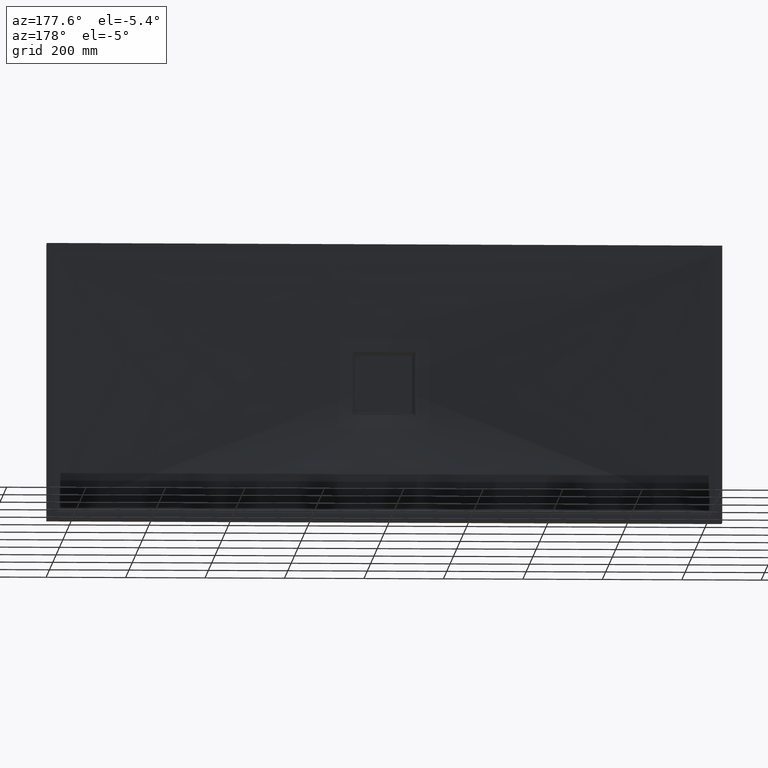
[diagram: clean part render]
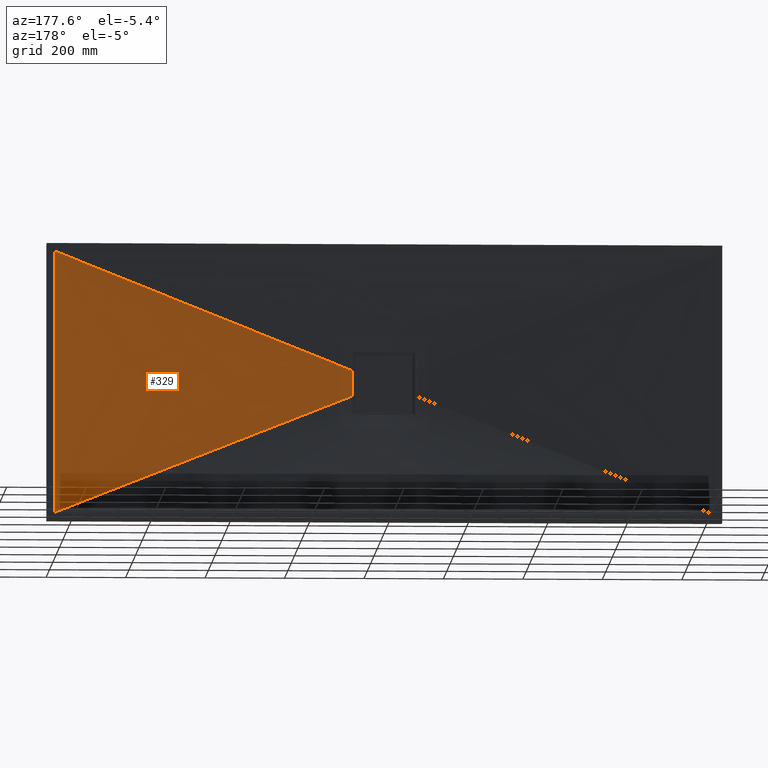
[diagram: same view with one face highlighted and labeled with its STEP entity id]
A machine part, auxiliary view. The second image highlights one B-rep face of the part: STEP entity #329.
In plain terms, the highlighted face is a freeform B-spline surface patch.
Its self-contained STEP definition (entity closure, byte-faithful):
#6 = CARTESIAN_POINT ( 'NONE',  ( 79.99999999997210400, 19.99999985491206200, 10.60246959217084300 ) ) ;
#39 = CARTESIAN_POINT ( 'NONE',  ( 79.99999999999984400, 20.11235715227695700, 31.80722891566264800 ) ) ;
#116 = ORIENTED_EDGE ( 'NONE', *, *, #1973, .F. ) ;
#179 = VERTEX_POINT ( 'NONE', #336 ) ;
#249 = CARTESIAN_POINT ( 'NONE',  ( 79.50665152719800200, 20.00000000000000000, 10.21273384050987200 ) ) ;
#284 = CARTESIAN_POINT ( 'NONE',  ( 79.99999999999990100, 20.00000000000000000, -5.106788439151860500 ) ) ;
#317 = CARTESIAN_POINT ( 'NONE',  ( 829.9999999999996600, 35.00000000000000000, -109.9999999999997900 ) ) ;
#329 = ADVANCED_FACE ( 'NONE', ( #2428 ), #1680, .F. ) ;
#334 = CARTESIAN_POINT ( 'NONE',  ( 829.9999999999997700, 35.00000000000000000, 329.9999999999998900 ) ) ;
#336 = CARTESIAN_POINT ( 'NONE',  ( 79.99999999999978700, 20.11235715227695700, -31.80722891566262300 ) ) ;
#472 = CARTESIAN_POINT ( 'NONE',  ( 79.99999999999981500, 20.04534978512916900, -21.20494176506167200 ) ) ;
#517 = CARTESIAN_POINT ( 'NONE',  ( 829.9999999999997700, 35.00000000000000000, 329.9999999999998900 ) ) ;
#612 = DIRECTION ( 'NONE',  ( -0.9290887592856064100, -0.01844258882943765300, -0.3693967356195783600 ) ) ;
#715 = ORIENTED_EDGE ( 'NONE', *, *, #1301, .T. ) ;
#767 = CARTESIAN_POINT ( 'NONE',  ( 79.99999999997213300, 20.00000014508792700, -10.60257809854362200 ) ) ;
#784 = EDGE_CURVE ( 'NONE', #3222, #1623, #2205, .T. ) ;
#797 = ORIENTED_EDGE ( 'NONE', *, *, #784, .T. ) ;
#811 = LINE ( 'NONE', #1089, #841 ) ;
#841 = VECTOR ( 'NONE', #1685, 1000.000000000000200 ) ;
#869 = VERTEX_POINT ( 'NONE', #39 ) ;
#1089 = CARTESIAN_POINT ( 'NONE',  ( 452.1698721862940700, 27.50000000000000400, -179.7783829174423100 ) ) ;
#1301 = EDGE_CURVE ( 'NONE', #1623, #179, #811, .T. ) ;
#1424 = CARTESIAN_POINT ( 'NONE',  ( 829.9999999999997700, 35.00000000000000000, -330.0000000000000000 ) ) ;
#1458 = CARTESIAN_POINT ( 'NONE',  ( 79.99999999999987200, 20.04534966236552800, 21.20492234069815800 ) ) ;
#1590 = CARTESIAN_POINT ( 'NONE',  ( 829.9999999999996600, 35.00000000000000000, 220.0000000000000900 ) ) ;
#1607 = CARTESIAN_POINT ( 'NONE',  ( 77.58608380986754600, 20.00000000000000000, 20.14961956495959300 ) ) ;
#1623 = VERTEX_POINT ( 'NONE', #1424 ) ;
#1680 = B_SPLINE_SURFACE_WITH_KNOTS ( 'NONE', 3, 1, ( 
 ( #3126, #2489 ),
 ( #2900, #2919 ),
 ( #2916, #2592 ),
 ( #317, #2903 ),
 ( #2048, #284 ),
 ( #2610, #2983 ),
 ( #2957, #249 ),
 ( #1590, #1607 ),
 ( #3177, #2719 ),
 ( #334, #2097 ) ),
 .UNSPECIFIED., .F., .F., .F.,
 ( 4, 2, 2, 2, 4 ),
 ( 2, 2 ),
 ( 0.0000000000000000000, 0.2500000000000000000, 0.5000000000000000000, 0.7500000000000000000, 1.000000000000000000 ),
 ( 0.0000000000000000000, 1.000000000000000000 ),
 .UNSPECIFIED. ) ;
#1685 = DIRECTION ( 'NONE',  ( -0.9290887592856063000, -0.01844258882943765300, 0.3693967356195784800 ) ) ;
#1727 = EDGE_LOOP ( 'NONE', ( #715, #2391, #116, #797 ) ) ;
#1973 = EDGE_CURVE ( 'NONE', #3222, #869, #3019, .T. ) ;
#2001 = EDGE_CURVE ( 'NONE', #179, #869, #2996, .T. ) ;
#2048 = CARTESIAN_POINT ( 'NONE',  ( 829.9999999999996600, 35.00000000000000000, -54.99999999999977300 ) ) ;
#2051 = DIRECTION ( 'NONE',  ( 0.0000000000000000000, 0.0000000000000000000, -1.000000000000000000 ) ) ;
#2097 = CARTESIAN_POINT ( 'NONE',  ( 74.33974437258837000, 20.00000000000000000, 29.55676583488460500 ) ) ;
#2205 = LINE ( 'NONE', #2450, #2228 ) ;
#2228 = VECTOR ( 'NONE', #2051, 1000.000000000000000 ) ;
#2317 = CARTESIAN_POINT ( 'NONE',  ( 79.99999999999984400, 20.11235715227695700, 31.80722891566264800 ) ) ;
#2357 = CARTESIAN_POINT ( 'NONE',  ( 79.99999999999978700, 20.11235715227695700, -31.80722891566262300 ) ) ;
#2391 = ORIENTED_EDGE ( 'NONE', *, *, #2001, .T. ) ;
#2428 = FACE_OUTER_BOUND ( 'NONE', #1727, .T. ) ;
#2450 = CARTESIAN_POINT ( 'NONE',  ( 829.9999999999997700, 35.00000000000000000, 329.9999999999998900 ) ) ;
#2489 = CARTESIAN_POINT ( 'NONE',  ( 74.33974437258837000, 20.00000000000000000, -29.55676583488459000 ) ) ;
#2592 = CARTESIAN_POINT ( 'NONE',  ( 77.58608380986756000, 20.00000000000000400, -20.14961956495957600 ) ) ;
#2607 = CARTESIAN_POINT ( 'NONE',  ( 452.1698721862940700, 27.50000000000000400, 179.7783829174422600 ) ) ;
#2610 = CARTESIAN_POINT ( 'NONE',  ( 829.9999999999996600, 35.00000000000000000, 55.00000000000019900 ) ) ;
#2719 = CARTESIAN_POINT ( 'NONE',  ( 76.15974938637629100, 20.00000000000000000, 24.97917746687257100 ) ) ;
#2900 = CARTESIAN_POINT ( 'NONE',  ( 829.9999999999996600, 35.00000000000000000, -274.9999999999998900 ) ) ;
#2903 = CARTESIAN_POINT ( 'NONE',  ( 79.50665152719800200, 20.00000000000000000, -10.21273384050985200 ) ) ;
#2916 = CARTESIAN_POINT ( 'NONE',  ( 829.9999999999996600, 35.00000000000000000, -219.9999999999998600 ) ) ;
#2919 = CARTESIAN_POINT ( 'NONE',  ( 76.15974938637630500, 19.99999999999999600, -24.97917746687254900 ) ) ;
#2957 = CARTESIAN_POINT ( 'NONE',  ( 829.9999999999996600, 35.00000000000000000, 110.0000000000001800 ) ) ;
#2983 = CARTESIAN_POINT ( 'NONE',  ( 79.99999999999988600, 19.99999999999999300, 5.106788439151873900 ) ) ;
#2996 = B_SPLINE_CURVE_WITH_KNOTS ( 'NONE', 3,
 ( #2357, #472, #767, #6, #1458, #2317 ),
 .UNSPECIFIED., .F., .F.,
 ( 4, 2, 4 ),
 ( 0.0000000000000000000, 0.03180737310968910500, 0.06361474621937821000 ),
 .UNSPECIFIED. ) ;
#3019 = LINE ( 'NONE', #2607, #3095 ) ;
#3095 = VECTOR ( 'NONE', #612, 1000.000000000000100 ) ;
#3126 = CARTESIAN_POINT ( 'NONE',  ( 829.9999999999997700, 35.00000000000000000, -330.0000000000000000 ) ) ;
#3177 = CARTESIAN_POINT ( 'NONE',  ( 829.9999999999996600, 35.00000000000000000, 275.0000000000000000 ) ) ;
#3222 = VERTEX_POINT ( 'NONE', #517 ) ;